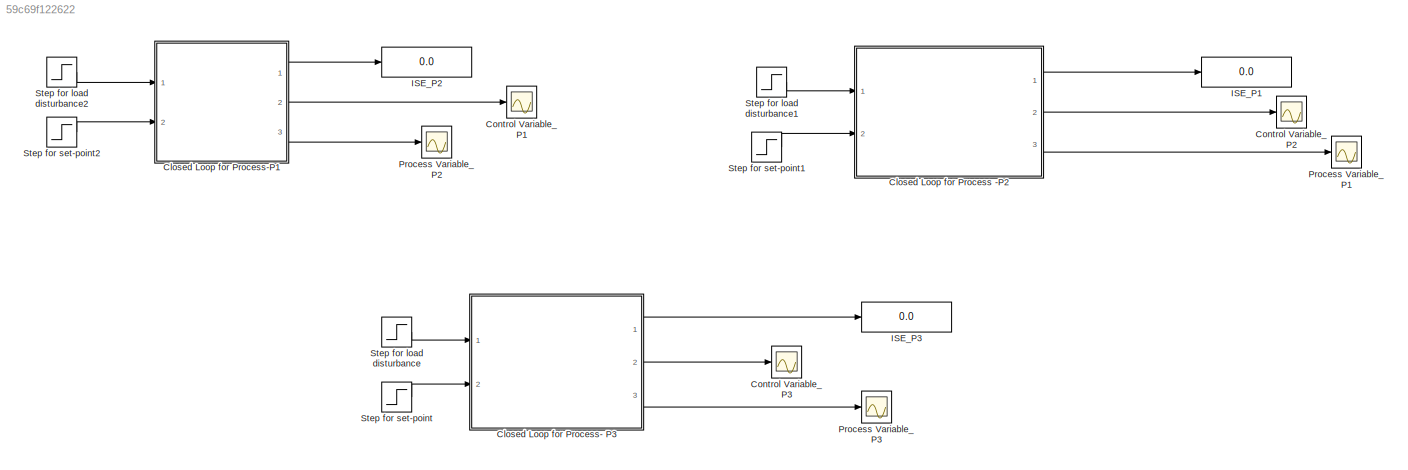
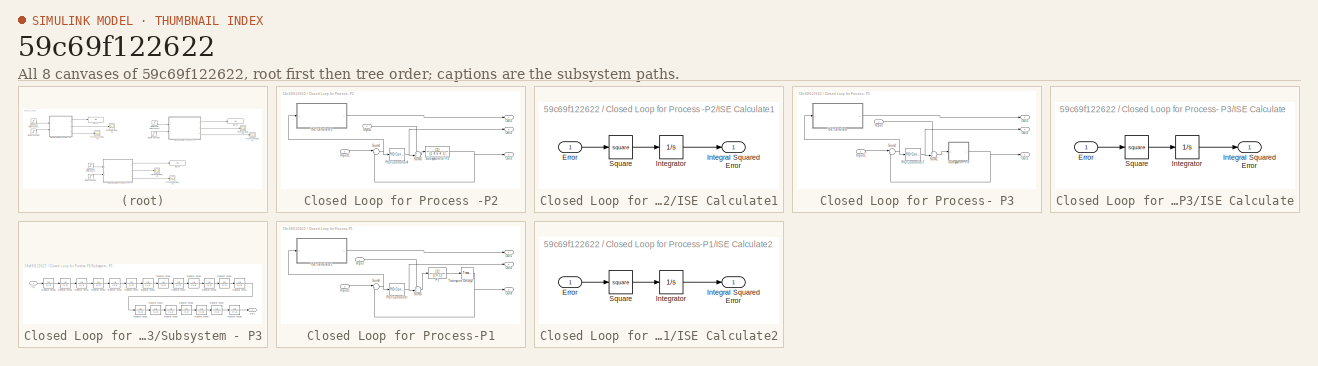
[diagram: thumbnail index - all 8 canvases of the model, root first then tree order]
MODEL slx_59c69f122622
KIND model
CONFIG AbsTol = auto
CONFIG EnableMultiTasking = off
CONFIG FixedStep = auto
CONFIG MaxStep = auto
CONFIG MinStep = auto
CONFIG RelTol = 1e-3
CONFIG SampleTimeConstraint = Unconstrained
CONFIG Solver = VariableStepAuto
CONFIG SolverName = VariableStepAuto
CONFIG StartTime = 0.0
CONFIG StopTime = 300
BLOCK [SubSystem] Closed Loop for Process -P2
  Ports = [2, 3]
  RequestExecContextInheritance = off
BLOCK [SubSystem] Closed Loop for Process -P2/ISE Calculate1
  Ports = [1, 1]
  RequestExecContextInheritance = off
BLOCK [Inport] Closed Loop for Process -P2/ISE Calculate1/Error
  IconDisplay = Port number
BLOCK [Outport] Closed Loop for Process -P2/ISE Calculate1/Integral Squared Error
  IconDisplay = Port number
BLOCK [Integrator] Closed Loop for Process -P2/ISE Calculate1/Integrator
  Ports = [1, 1]
BLOCK [Math] Closed Loop for Process -P2/ISE Calculate1/Square
  Operator = square
  Ports = [1, 1]
  SignedPower = off
BLOCK [Inport] Closed Loop for Process -P2/Input
  IconDisplay = Port number
BLOCK [Inport] Closed Loop for Process -P2/Input1
  IconDisplay = Port number
  Port = 2
BLOCK [Outport] Closed Loop for Process -P2/Out1
  IconDisplay = Port number
BLOCK [Outport] Closed Loop for Process -P2/Out2
  IconDisplay = Port number
  Port = 2
BLOCK [Outport] Closed Loop for Process -P2/Out3
  IconDisplay = Port number
  Port = 3
BLOCK [Reference] Closed Loop for Process -P2/PID Controller4  REF=simulink/Continuous/PID Controller
  Ports = [1, 1]
  SourceBlock = simulink/Continuous/PID Controller
  SourceProductBaseCode = SL
  SourceProductName = Simulink
  SourceType = PID 1dof
BLOCK [TransferFcn] Closed Loop for Process -P2/Subsystem for P2
  Denominator = [1 4 6 4 1]
BLOCK [Sum] Closed Loop for Process -P2/Sum3
  IconShape = round
  InputSameDT = off
  Inputs = ++|
  OutDataTypeStr = Inherit: Inherit via internal rule
  Ports = [2, 1]
  SaturateOnIntegerOverflow = off
BLOCK [Sum] Closed Loop for Process -P2/Sum4
  IconShape = round
  InputSameDT = off
  Inputs = |+-
  OutDataTypeStr = Inherit: Inherit via internal rule
  Ports = [2, 1]
  SaturateOnIntegerOverflow = off
BLOCK [SubSystem] Closed Loop for Process- P3
  Ports = [2, 3]
  RequestExecContextInheritance = off
BLOCK [SubSystem] Closed Loop for Process- P3/ISE Calculate
  Ports = [1, 1]
  RequestExecContextInheritance = off
BLOCK [Inport] Closed Loop for Process- P3/ISE Calculate/Error
  IconDisplay = Port number
BLOCK [Outport] Closed Loop for Process- P3/ISE Calculate/Integral Squared Error
  IconDisplay = Port number
BLOCK [Integrator] Closed Loop for Process- P3/ISE Calculate/Integrator
  Ports = [1, 1]
BLOCK [Math] Closed Loop for Process- P3/ISE Calculate/Square
  Operator = square
  Ports = [1, 1]
  SignedPower = off
BLOCK [Inport] Closed Loop for Process- P3/Input
  IconDisplay = Port number
BLOCK [Inport] Closed Loop for Process- P3/Input1
  IconDisplay = Port number
  Port = 2
BLOCK [Outport] Closed Loop for Process- P3/Out1
  IconDisplay = Port number
BLOCK [Outport] Closed Loop for Process- P3/Out2
  IconDisplay = Port number
  Port = 2
BLOCK [Outport] Closed Loop for Process- P3/Out3
  IconDisplay = Port number
  Port = 3
BLOCK [Reference] Closed Loop for Process- P3/PID Controller7  REF=simulink/Continuous/PID Controller
  Ports = [1, 1]
  SourceBlock = simulink/Continuous/PID Controller
  SourceProductBaseCode = SL
  SourceProductName = Simulink
  SourceType = PID 1dof
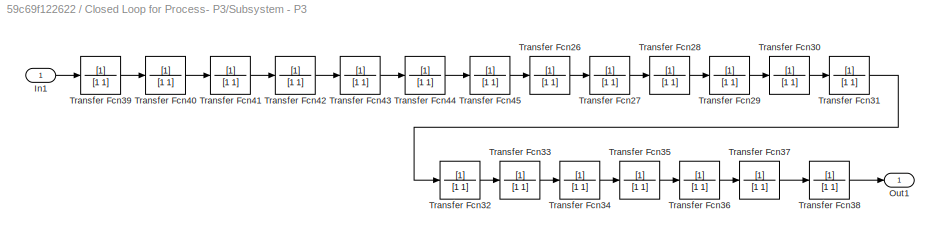
BLOCK [SubSystem] Closed Loop for Process- P3/Subsystem - P3
  Ports = [1, 1]
  RequestExecContextInheritance = off
BLOCK [Inport] Closed Loop for Process- P3/Subsystem - P3/In1
  IconDisplay = Port number
BLOCK [Outport] Closed Loop for Process- P3/Subsystem - P3/Out1
  IconDisplay = Port number
BLOCK [TransferFcn] Closed Loop for Process- P3/Subsystem - P3/Transfer Fcn26
  Denominator = [1 1]
BLOCK [TransferFcn] Closed Loop for Process- P3/Subsystem - P3/Transfer Fcn27
  Denominator = [1 1]
BLOCK [TransferFcn] Closed Loop for Process- P3/Subsystem - P3/Transfer Fcn28
  Denominator = [1 1]
BLOCK [TransferFcn] Closed Loop for Process- P3/Subsystem - P3/Transfer Fcn29
  Denominator = [1 1]
BLOCK [TransferFcn] Closed Loop for Process- P3/Subsystem - P3/Transfer Fcn30
  Denominator = [1 1]
BLOCK [TransferFcn] Closed Loop for Process- P3/Subsystem - P3/Transfer Fcn31
  Denominator = [1 1]
BLOCK [TransferFcn] Closed Loop for Process- P3/Subsystem - P3/Transfer Fcn32
  Denominator = [1 1]
BLOCK [TransferFcn] Closed Loop for Process- P3/Subsystem - P3/Transfer Fcn33
  Denominator = [1 1]
BLOCK [TransferFcn] Closed Loop for Process- P3/Subsystem - P3/Transfer Fcn34
  Denominator = [1 1]
BLOCK [TransferFcn] Closed Loop for Process- P3/Subsystem - P3/Transfer Fcn35
  Denominator = [1 1]
BLOCK [TransferFcn] Closed Loop for Process- P3/Subsystem - P3/Transfer Fcn36
  Denominator = [1 1]
BLOCK [TransferFcn] Closed Loop for Process- P3/Subsystem - P3/Transfer Fcn37
  Denominator = [1 1]
BLOCK [TransferFcn] Closed Loop for Process- P3/Subsystem - P3/Transfer Fcn38
  Denominator = [1 1]
BLOCK [TransferFcn] Closed Loop for Process- P3/Subsystem - P3/Transfer Fcn39
  Denominator = [1 1]
BLOCK [TransferFcn] Closed Loop for Process- P3/Subsystem - P3/Transfer Fcn40
  Denominator = [1 1]
BLOCK [TransferFcn] Closed Loop for Process- P3/Subsystem - P3/Transfer Fcn41
  Denominator = [1 1]
BLOCK [TransferFcn] Closed Loop for Process- P3/Subsystem - P3/Transfer Fcn42
  Denominator = [1 1]
BLOCK [TransferFcn] Closed Loop for Process- P3/Subsystem - P3/Transfer Fcn43
  Denominator = [1 1]
BLOCK [TransferFcn] Closed Loop for Process- P3/Subsystem - P3/Transfer Fcn44
  Denominator = [1 1]
BLOCK [TransferFcn] Closed Loop for Process- P3/Subsystem - P3/Transfer Fcn45
  Denominator = [1 1]
BLOCK [Sum] Closed Loop for Process- P3/Sum1
  IconShape = round
  InputSameDT = off
  Inputs = ++|
  OutDataTypeStr = Inherit: Inherit via internal rule
  Ports = [2, 1]
  SaturateOnIntegerOverflow = off
BLOCK [Sum] Closed Loop for Process- P3/Sum2
  IconShape = round
  InputSameDT = off
  Inputs = |+-
  OutDataTypeStr = Inherit: Inherit via internal rule
  Ports = [2, 1]
  SaturateOnIntegerOverflow = off
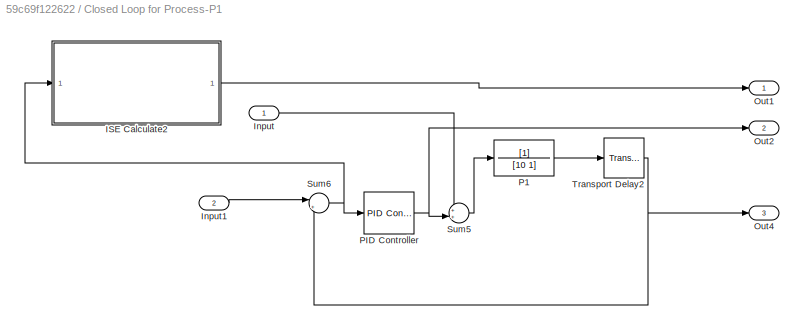
BLOCK [SubSystem] Closed Loop for Process-P1
  Ports = [2, 3]
  RequestExecContextInheritance = off
BLOCK [SubSystem] Closed Loop for Process-P1/ISE Calculate2
  Ports = [1, 1]
  RequestExecContextInheritance = off
BLOCK [Inport] Closed Loop for Process-P1/ISE Calculate2/Error
  IconDisplay = Port number
BLOCK [Outport] Closed Loop for Process-P1/ISE Calculate2/Integral Squared Error
  IconDisplay = Port number
BLOCK [Integrator] Closed Loop for Process-P1/ISE Calculate2/Integrator
  Ports = [1, 1]
BLOCK [Math] Closed Loop for Process-P1/ISE Calculate2/Square
  Operator = square
  Ports = [1, 1]
  SignedPower = off
BLOCK [Inport] Closed Loop for Process-P1/Input
  IconDisplay = Port number
BLOCK [Inport] Closed Loop for Process-P1/Input1
  IconDisplay = Port number
  Port = 2
BLOCK [Outport] Closed Loop for Process-P1/Out1
  IconDisplay = Port number
BLOCK [Outport] Closed Loop for Process-P1/Out2
  IconDisplay = Port number
  Port = 2
BLOCK [Outport] Closed Loop for Process-P1/Out4
  IconDisplay = Port number
  Port = 3
BLOCK [TransferFcn] Closed Loop for Process-P1/P1
  Denominator = [10 1]
BLOCK [Reference] Closed Loop for Process-P1/PID Controller  REF=simulink/Continuous/PID Controller
  Ports = [1, 1]
  SourceBlock = simulink/Continuous/PID Controller
  SourceProductBaseCode = SL
  SourceProductName = Simulink
  SourceType = PID 1dof
BLOCK [Sum] Closed Loop for Process-P1/Sum5
  IconShape = round
  InputSameDT = off
  Inputs = ++|
  OutDataTypeStr = Inherit: Inherit via internal rule
  Ports = [2, 1]
  SaturateOnIntegerOverflow = off
BLOCK [Sum] Closed Loop for Process-P1/Sum6
  IconShape = round
  InputSameDT = off
  Inputs = |+-
  OutDataTypeStr = Inherit: Inherit via internal rule
  Ports = [2, 1]
  SaturateOnIntegerOverflow = off
BLOCK [TransportDelay] Closed Loop for Process-P1/Transport Delay2
  DelayTime = 4
  PadeOrder = 1
  Ports = [1, 1]
BLOCK [Scope] Control Variable_P1
  Floating = off
  NumInputPorts = 1
  Ports = [1]
  ScopeSpecificationString = Simulink.scopes.TimeScopeBlockCfg('CurrentConfiguration', extmgr.ConfigurationSet(extmgr.Configuration('Core','General UI',true,'FigureColor',[1 1 1]),extmgr.Configuration('Core','Source UI',true),extmgr.Configuration('Sources','WiredSimulink',true,'DataLoggingVariableName','ScopeData1'),extmgr.Configuration('Visuals','Time Domain',true,'SerializedDisplays',{struct('MinYLimReal','-0.10519','MaxYLi...<+1587ch>
BLOCK [Scope] Control Variable_P2
  Floating = off
  NumInputPorts = 1
  Ports = [1]
  ScopeSpecificationString = Simulink.scopes.TimeScopeBlockCfg('CurrentConfiguration', extmgr.ConfigurationSet(extmgr.Configuration('Core','General UI',true,'FigureColor',[1 1 1]),extmgr.Configuration('Core','Source UI',true),extmgr.Configuration('Sources','WiredSimulink',true,'DataLoggingVariableName','ScopeData3'),extmgr.Configuration('Visuals','Time Domain',true,'SerializedDisplays',{struct('MinYLimReal','-0.10519','MaxYLi...<+1588ch>
BLOCK [Scope] Control Variable_P3
  Floating = off
  NumInputPorts = 1
  Ports = [1]
  ScopeSpecificationString = Simulink.scopes.TimeScopeBlockCfg('CurrentConfiguration', extmgr.ConfigurationSet(extmgr.Configuration('Core','General UI',true,'FigureColor',[1 1 1]),extmgr.Configuration('Core','Source UI',true),extmgr.Configuration('Sources','WiredSimulink',true,'DataLoggingVariableName','ScopeData5'),extmgr.Configuration('Visuals','Time Domain',true,'SerializedDisplays',{struct('MinYLimReal','-0.10519','MaxYLi...<+1588ch>
BLOCK [Display] ISE_P1
  Decimation = 1
  Ports = [1]
BLOCK [Display] ISE_P2
  Decimation = 1
  Ports = [1]
BLOCK [Display] ISE_P3
  Decimation = 1
  Ports = [1]
BLOCK [Scope] Process Variable_P1
  Floating = off
  NumInputPorts = 1
  Ports = [1]
  ScopeSpecificationString = Simulink.scopes.TimeScopeBlockCfg('CurrentConfiguration', extmgr.ConfigurationSet(extmgr.Configuration('Core','General UI',true,'FigureColor',[1 1 1]),extmgr.Configuration('Core','Source UI',true),extmgr.Configuration('Sources','WiredSimulink',true,'DataLoggingVariableName','ScopeData4'),extmgr.Configuration('Visuals','Time Domain',true,'SerializedDisplays',{struct('MinYLimReal','-0.16416','MaxYLi...<+1572ch>
BLOCK [Scope] Process Variable_P2
  Floating = off
  NumInputPorts = 1
  Ports = [1]
  ScopeSpecificationString = Simulink.scopes.TimeScopeBlockCfg('CurrentConfiguration', extmgr.ConfigurationSet(extmgr.Configuration('Core','General UI',true,'FigureColor',[1 1 1]),extmgr.Configuration('Core','Source UI',true),extmgr.Configuration('Sources','WiredSimulink',true,'DataLoggingVariableName','ScopeData2'),extmgr.Configuration('Visuals','Time Domain',true,'SerializedDisplays',{struct('MinYLimReal','-0.16416','MaxYLi...<+1572ch>
BLOCK [Scope] Process Variable_P3
  Floating = off
  NumInputPorts = 1
  Ports = [1]
  ScopeSpecificationString = Simulink.scopes.TimeScopeBlockCfg('CurrentConfiguration', extmgr.ConfigurationSet(extmgr.Configuration('Core','General UI',true,'FigureColor',[1 1 1]),extmgr.Configuration('Core','Source UI',true),extmgr.Configuration('Sources','WiredSimulink',true,'DataLoggingVariableName','ScopeData6'),extmgr.Configuration('Visuals','Time Domain',true,'SerializedDisplays',{struct('MinYLimReal','-0.16416','MaxYLi...<+1572ch>
BLOCK [Step] Step for load disturbance
  After = 0
  SampleTime = 0
  Time = 0
BLOCK [Step] Step for load disturbance1
  After = 0
  SampleTime = 0
  Time = 0
BLOCK [Step] Step for load disturbance2
  After = 0
  SampleTime = 0
  Time = 0
BLOCK [Step] Step for set-point
  SampleTime = 0
  Time = 0
BLOCK [Step] Step for set-point1
  SampleTime = 0
  Time = 0
BLOCK [Step] Step for set-point2
  SampleTime = 0
  Time = 0
LINE Closed Loop for Process -P2/ISE Calculate1/Error:1 -> Closed Loop for Process -P2/ISE Calculate1/Square:1
LINE Closed Loop for Process -P2/ISE Calculate1/Integrator:1 -> Closed Loop for Process -P2/ISE Calculate1/Integral Squared Error:1
LINE Closed Loop for Process -P2/ISE Calculate1/Square:1 -> Closed Loop for Process -P2/ISE Calculate1/Integrator:1
LINE Closed Loop for Process -P2/ISE Calculate1:1 -> Closed Loop for Process -P2/Out1:1
LINE Closed Loop for Process -P2/Input1:1 -> Closed Loop for Process -P2/Sum4:1
LINE Closed Loop for Process -P2/Input:1 -> Closed Loop for Process -P2/Sum3:1
NET Closed Loop for Process -P2/PID Controller4:1 -> Closed Loop for Process -P2/Out2:1, Closed Loop for Process -P2/Sum3:2
NET Closed Loop for Process -P2/Subsystem for P2:1 -> Closed Loop for Process -P2/Out3:1, Closed Loop for Process -P2/Sum4:2
LINE Closed Loop for Process -P2/Sum3:1 -> Closed Loop for Process -P2/Subsystem for P2:1
NET Closed Loop for Process -P2/Sum4:1 -> Closed Loop for Process -P2/ISE Calculate1:1, Closed Loop for Process -P2/PID Controller4:1
LINE Closed Loop for Process -P2:1 -> ISE_P1:1
LINE Closed Loop for Process -P2:2 -> Control Variable_P2:1
LINE Closed Loop for Process -P2:3 -> Process Variable_P1:1
LINE Closed Loop for Process- P3/ISE Calculate/Error:1 -> Closed Loop for Process- P3/ISE Calculate/Square:1
LINE Closed Loop for Process- P3/ISE Calculate/Integrator:1 -> Closed Loop for Process- P3/ISE Calculate/Integral Squared Error:1
LINE Closed Loop for Process- P3/ISE Calculate/Square:1 -> Closed Loop for Process- P3/ISE Calculate/Integrator:1
LINE Closed Loop for Process- P3/ISE Calculate:1 -> Closed Loop for Process- P3/Out1:1
LINE Closed Loop for Process- P3/Input1:1 -> Closed Loop for Process- P3/Sum2:1
LINE Closed Loop for Process- P3/Input:1 -> Closed Loop for Process- P3/Sum1:1
NET Closed Loop for Process- P3/PID Controller7:1 -> Closed Loop for Process- P3/Out2:1, Closed Loop for Process- P3/Sum1:2
LINE Closed Loop for Process- P3/Subsystem - P3/In1:1 -> Closed Loop for Process- P3/Subsystem - P3/Transfer Fcn39:1
LINE Closed Loop for Process- P3/Subsystem - P3/Transfer Fcn26:1 -> Closed Loop for Process- P3/Subsystem - P3/Transfer Fcn27:1
LINE Closed Loop for Process- P3/Subsystem - P3/Transfer Fcn27:1 -> Closed Loop for Process- P3/Subsystem - P3/Transfer Fcn28:1
LINE Closed Loop for Process- P3/Subsystem - P3/Transfer Fcn28:1 -> Closed Loop for Process- P3/Subsystem - P3/Transfer Fcn29:1
LINE Closed Loop for Process- P3/Subsystem - P3/Transfer Fcn29:1 -> Closed Loop for Process- P3/Subsystem - P3/Transfer Fcn30:1
LINE Closed Loop for Process- P3/Subsystem - P3/Transfer Fcn30:1 -> Closed Loop for Process- P3/Subsystem - P3/Transfer Fcn31:1
LINE Closed Loop for Process- P3/Subsystem - P3/Transfer Fcn31:1 -> Closed Loop for Process- P3/Subsystem - P3/Transfer Fcn32:1
LINE Closed Loop for Process- P3/Subsystem - P3/Transfer Fcn32:1 -> Closed Loop for Process- P3/Subsystem - P3/Transfer Fcn33:1
LINE Closed Loop for Process- P3/Subsystem - P3/Transfer Fcn33:1 -> Closed Loop for Process- P3/Subsystem - P3/Transfer Fcn34:1
LINE Closed Loop for Process- P3/Subsystem - P3/Transfer Fcn34:1 -> Closed Loop for Process- P3/Subsystem - P3/Transfer Fcn35:1
LINE Closed Loop for Process- P3/Subsystem - P3/Transfer Fcn35:1 -> Closed Loop for Process- P3/Subsystem - P3/Transfer Fcn36:1
LINE Closed Loop for Process- P3/Subsystem - P3/Transfer Fcn36:1 -> Closed Loop for Process- P3/Subsystem - P3/Transfer Fcn37:1
LINE Closed Loop for Process- P3/Subsystem - P3/Transfer Fcn37:1 -> Closed Loop for Process- P3/Subsystem - P3/Transfer Fcn38:1
LINE Closed Loop for Process- P3/Subsystem - P3/Transfer Fcn38:1 -> Closed Loop for Process- P3/Subsystem - P3/Out1:1
LINE Closed Loop for Process- P3/Subsystem - P3/Transfer Fcn39:1 -> Closed Loop for Process- P3/Subsystem - P3/Transfer Fcn40:1
LINE Closed Loop for Process- P3/Subsystem - P3/Transfer Fcn40:1 -> Closed Loop for Process- P3/Subsystem - P3/Transfer Fcn41:1
LINE Closed Loop for Process- P3/Subsystem - P3/Transfer Fcn41:1 -> Closed Loop for Process- P3/Subsystem - P3/Transfer Fcn42:1
LINE Closed Loop for Process- P3/Subsystem - P3/Transfer Fcn42:1 -> Closed Loop for Process- P3/Subsystem - P3/Transfer Fcn43:1
LINE Closed Loop for Process- P3/Subsystem - P3/Transfer Fcn43:1 -> Closed Loop for Process- P3/Subsystem - P3/Transfer Fcn44:1
LINE Closed Loop for Process- P3/Subsystem - P3/Transfer Fcn44:1 -> Closed Loop for Process- P3/Subsystem - P3/Transfer Fcn45:1
LINE Closed Loop for Process- P3/Subsystem - P3/Transfer Fcn45:1 -> Closed Loop for Process- P3/Subsystem - P3/Transfer Fcn26:1
NET Closed Loop for Process- P3/Subsystem - P3:1 -> Closed Loop for Process- P3/Out3:1, Closed Loop for Process- P3/Sum2:2
LINE Closed Loop for Process- P3/Sum1:1 -> Closed Loop for Process- P3/Subsystem - P3:1
NET Closed Loop for Process- P3/Sum2:1 -> Closed Loop for Process- P3/ISE Calculate:1, Closed Loop for Process- P3/PID Controller7:1
LINE Closed Loop for Process- P3:1 -> ISE_P3:1
LINE Closed Loop for Process- P3:2 -> Control Variable_P3:1
LINE Closed Loop for Process- P3:3 -> Process Variable_P3:1
LINE Closed Loop for Process-P1/ISE Calculate2/Error:1 -> Closed Loop for Process-P1/ISE Calculate2/Square:1
LINE Closed Loop for Process-P1/ISE Calculate2/Integrator:1 -> Closed Loop for Process-P1/ISE Calculate2/Integral Squared Error:1
LINE Closed Loop for Process-P1/ISE Calculate2/Square:1 -> Closed Loop for Process-P1/ISE Calculate2/Integrator:1
LINE Closed Loop for Process-P1/ISE Calculate2:1 -> Closed Loop for Process-P1/Out1:1
LINE Closed Loop for Process-P1/Input1:1 -> Closed Loop for Process-P1/Sum6:1
LINE Closed Loop for Process-P1/Input:1 -> Closed Loop for Process-P1/Sum5:1
LINE Closed Loop for Process-P1/P1:1 -> Closed Loop for Process-P1/Transport Delay2:1
NET Closed Loop for Process-P1/PID Controller:1 -> Closed Loop for Process-P1/Out2:1, Closed Loop for Process-P1/Sum5:2
LINE Closed Loop for Process-P1/Sum5:1 -> Closed Loop for Process-P1/P1:1
NET Closed Loop for Process-P1/Sum6:1 -> Closed Loop for Process-P1/ISE Calculate2:1, Closed Loop for Process-P1/PID Controller:1
NET Closed Loop for Process-P1/Transport Delay2:1 -> Closed Loop for Process-P1/Out4:1, Closed Loop for Process-P1/Sum6:2
LINE Closed Loop for Process-P1:1 -> ISE_P2:1
LINE Closed Loop for Process-P1:2 -> Control Variable_P1:1
LINE Closed Loop for Process-P1:3 -> Process Variable_P2:1
LINE Step for load disturbance1:1 -> Closed Loop for Process -P2:1
LINE Step for load disturbance2:1 -> Closed Loop for Process-P1:1
LINE Step for load disturbance:1 -> Closed Loop for Process- P3:1
LINE Step for set-point1:1 -> Closed Loop for Process -P2:2
LINE Step for set-point2:1 -> Closed Loop for Process-P1:2
LINE Step for set-point:1 -> Closed Loop for Process- P3:2
note: NET lines group one-source signal fan-out (src -> all destinations, sorted); 1:1 wires keep LINE
